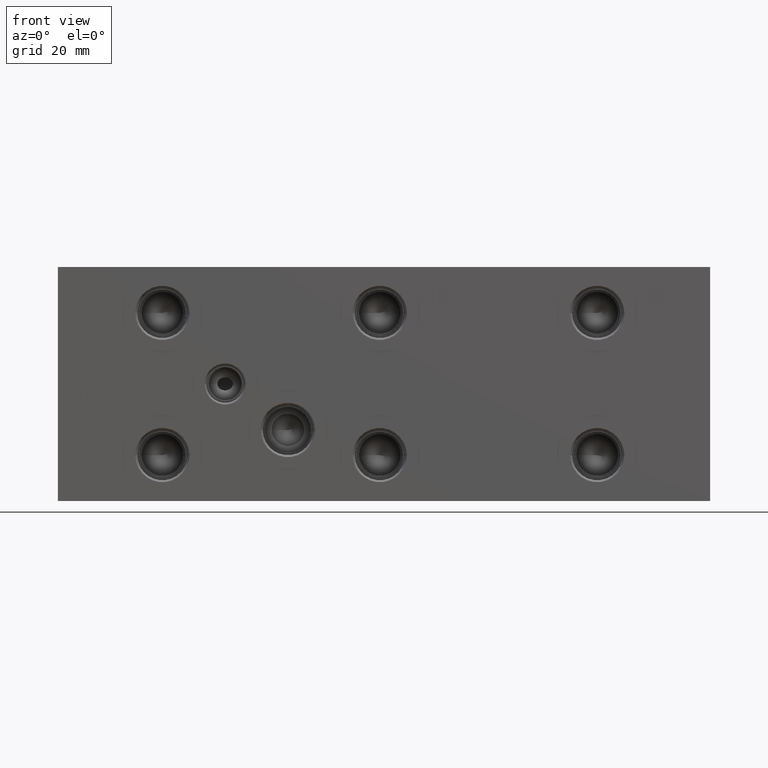
[diagram: clean part render]
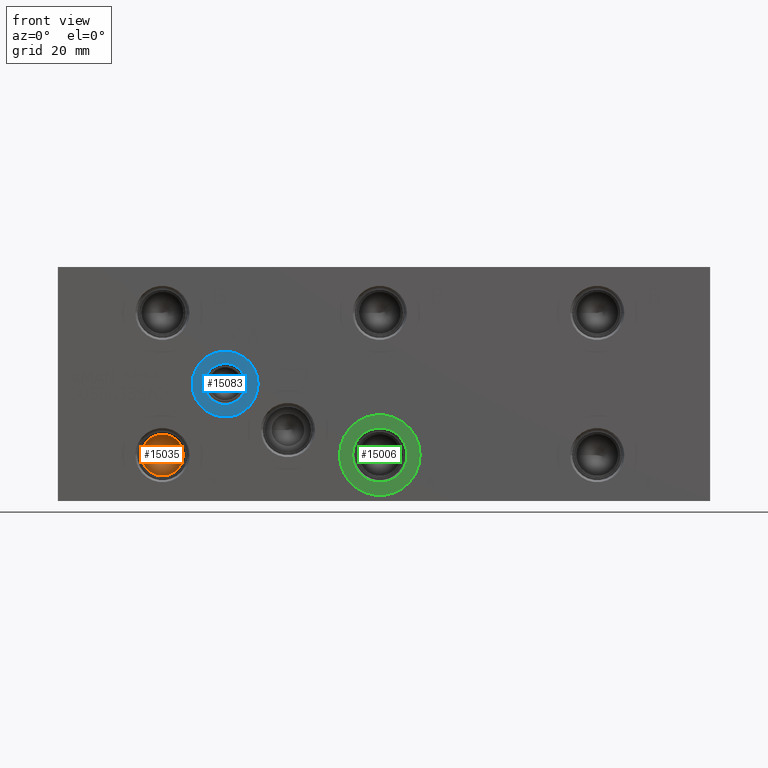
[diagram: same view with three faces highlighted in distinct colors, each labeled with its STEP entity id]
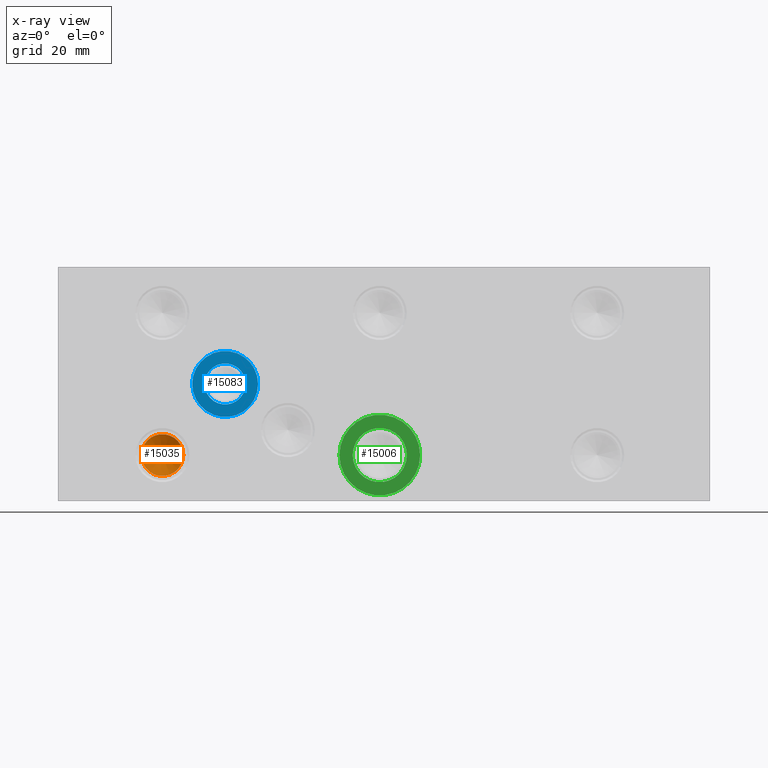
[diagram: x-ray of the same camera — body ghosted, the three highlighted faces saturated]
A machine part, front view with three faces highlighted in distinct colors.
The next image is the same camera in x-ray (body ghosted, the three faces saturated) — at least one of them is partly hidden behind the body in this view.
Their STEP definitions:

[orange] entity #15035 — the highlighted conical surface has half-angle 60 deg.
#49=CONICAL_SURFACE('',#15798,3.96875,1.0471975511966);
#372=CIRCLE('',#15799,7.9375);
#373=CIRCLE('',#15800,7.9375);
#2003=FACE_OUTER_BOUND('',#2864,.T.);
#2864=EDGE_LOOP('',(#12786,#12787,#12788,#12789));
#4237=LINE('',#25855,#5536);
#5536=VECTOR('',#18575,3.96875);
#6866=VERTEX_POINT('',#25851);
#6867=VERTEX_POINT('',#25852);
#6868=VERTEX_POINT('',#25854);
#8905=EDGE_CURVE('',#6866,#6867,#372,.T.);
#8906=EDGE_CURVE('',#6867,#6868,#4237,.T.);
#8907=EDGE_CURVE('',#6867,#6866,#373,.T.);
#12786=ORIENTED_EDGE('',*,*,#8905,.T.);
#12787=ORIENTED_EDGE('',*,*,#8906,.T.);
#12788=ORIENTED_EDGE('',*,*,#8906,.F.);
#12789=ORIENTED_EDGE('',*,*,#8907,.T.);
#15035=ADVANCED_FACE('',(#2003),#49,.F.);
#15798=AXIS2_PLACEMENT_3D('',#25850,#18571,#18572);
#15799=AXIS2_PLACEMENT_3D('',#25853,#18573,#18574);
#15800=AXIS2_PLACEMENT_3D('',#25856,#18576,#18577);
#18571=DIRECTION('center_axis',(0.,-1.,0.));
#18572=DIRECTION('ref_axis',(1.,0.,0.));
#18573=DIRECTION('center_axis',(0.,-1.,0.));
#18574=DIRECTION('ref_axis',(1.,0.,0.));
#18575=DIRECTION('',(0.866025403784439,0.5,1.06057523872491E-16));
#18576=DIRECTION('center_axis',(0.,-1.,0.));
#18577=DIRECTION('ref_axis',(1.,0.,0.));
#25850=CARTESIAN_POINT('Origin',(39.6748,25.5239588808463,17.4498));
#25851=CARTESIAN_POINT('',(47.6123,23.2326,17.4498));
#25852=CARTESIAN_POINT('',(31.7373,23.2326,17.4498));
#25853=CARTESIAN_POINT('Origin',(39.6748,23.2326,17.4498));
#25854=CARTESIAN_POINT('',(39.6748,27.8153177616927,17.4498));
#25855=CARTESIAN_POINT('',(35.70605,25.5239588808463,17.4498));
#25856=CARTESIAN_POINT('Origin',(39.6748,23.2326,17.4498));

[blue] entity #15083 — the highlighted planar face has unit normal (0, 1, 0).
#438=CIRCLE('',#15912,12.5095);
#439=CIRCLE('',#15913,12.5095);
#440=CIRCLE('',#15915,7.7978);
#441=CIRCLE('',#15916,7.7978);
#666=FACE_BOUND('',#2923,.T.);
#2051=FACE_OUTER_BOUND('',#2922,.T.);
#2922=EDGE_LOOP('',(#13013,#13014));
#2923=EDGE_LOOP('',(#13015,#13016));
#6934=VERTEX_POINT('',#26069);
#6935=VERTEX_POINT('',#26071);
#6936=VERTEX_POINT('',#26075);
#6937=VERTEX_POINT('',#26076);
#9009=EDGE_CURVE('',#6934,#6935,#438,.T.);
#9010=EDGE_CURVE('',#6935,#6934,#439,.T.);
#9011=EDGE_CURVE('',#6936,#6937,#440,.T.);
#9012=EDGE_CURVE('',#6937,#6936,#441,.T.);
#13013=ORIENTED_EDGE('',*,*,#9010,.F.);
#13014=ORIENTED_EDGE('',*,*,#9009,.F.);
#13015=ORIENTED_EDGE('',*,*,#9011,.T.);
#13016=ORIENTED_EDGE('',*,*,#9012,.T.);
#13819=PLANE('',#15914);
#15083=ADVANCED_FACE('',(#2051,#666),#13819,.F.);
#15912=AXIS2_PLACEMENT_3D('',#26072,#18837,#18838);
#15913=AXIS2_PLACEMENT_3D('',#26073,#18839,#18840);
#15914=AXIS2_PLACEMENT_3D('',#26074,#18841,#18842);
#15915=AXIS2_PLACEMENT_3D('',#26077,#18843,#18844);
#15916=AXIS2_PLACEMENT_3D('',#26078,#18845,#18846);
#18837=DIRECTION('center_axis',(0.,1.,0.));
#18838=DIRECTION('ref_axis',(1.,0.,0.));
#18839=DIRECTION('center_axis',(0.,1.,0.));
#18840=DIRECTION('ref_axis',(1.,0.,0.));
#18841=DIRECTION('center_axis',(0.,1.,0.));
#18842=DIRECTION('ref_axis',(0.,0.,1.));
#18843=DIRECTION('center_axis',(0.,1.,0.));
#18844=DIRECTION('ref_axis',(1.,0.,0.));
#18845=DIRECTION('center_axis',(0.,1.,0.));
#18846=DIRECTION('ref_axis',(1.,0.,0.));
#26069=CARTESIAN_POINT('',(50.9905,0.7874,44.45));
#26071=CARTESIAN_POINT('',(76.0095,0.7874,44.45));
#26072=CARTESIAN_POINT('Origin',(63.5,0.7874,44.45));
#26073=CARTESIAN_POINT('Origin',(63.5,0.7874,44.45));
#26074=CARTESIAN_POINT('Origin',(71.2978,0.7874,44.45));
#26075=CARTESIAN_POINT('',(71.2978,0.7874,44.45));
#26076=CARTESIAN_POINT('',(55.7022,0.787400000000001,44.45));
#26077=CARTESIAN_POINT('Origin',(63.5,0.7874,44.45));
#26078=CARTESIAN_POINT('Origin',(63.5,0.7874,44.45));

[green] entity #15006 — the highlighted planar face has unit normal (0, 1, 0).
#321=CIRCLE('',#15718,15.3162);
#322=CIRCLE('',#15719,15.3162);
#323=CIRCLE('',#15721,10.2997);
#324=CIRCLE('',#15722,10.2997);
#652=FACE_BOUND('',#2832,.T.);
#1974=FACE_OUTER_BOUND('',#2831,.T.);
#2831=EDGE_LOOP('',(#12639,#12640));
#2832=EDGE_LOOP('',(#12641,#12642));
#6810=VERTEX_POINT('',#25688);
#6811=VERTEX_POINT('',#25690);
#6812=VERTEX_POINT('',#25694);
#6813=VERTEX_POINT('',#25695);
#8829=EDGE_CURVE('',#6810,#6811,#321,.T.);
#8830=EDGE_CURVE('',#6811,#6810,#322,.T.);
#8831=EDGE_CURVE('',#6812,#6813,#323,.T.);
#8832=EDGE_CURVE('',#6813,#6812,#324,.T.);
#12639=ORIENTED_EDGE('',*,*,#8830,.F.);
#12640=ORIENTED_EDGE('',*,*,#8829,.F.);
#12641=ORIENTED_EDGE('',*,*,#8831,.T.);
#12642=ORIENTED_EDGE('',*,*,#8832,.T.);
#13805=PLANE('',#15720);
#15006=ADVANCED_FACE('',(#1974,#652),#13805,.F.);
#15718=AXIS2_PLACEMENT_3D('',#25691,#18386,#18387);
#15719=AXIS2_PLACEMENT_3D('',#25692,#18388,#18389);
#15720=AXIS2_PLACEMENT_3D('',#25693,#18390,#18391);
#15721=AXIS2_PLACEMENT_3D('',#25696,#18392,#18393);
#15722=AXIS2_PLACEMENT_3D('',#25697,#18394,#18395);
#18386=DIRECTION('center_axis',(0.,1.,0.));
#18387=DIRECTION('ref_axis',(1.,0.,0.));
#18388=DIRECTION('center_axis',(0.,1.,0.));
#18389=DIRECTION('ref_axis',(1.,0.,0.));
#18390=DIRECTION('center_axis',(0.,1.,0.));
#18391=DIRECTION('ref_axis',(0.,0.,1.));
#18392=DIRECTION('center_axis',(0.,1.,0.));
#18393=DIRECTION('ref_axis',(1.,0.,0.));
#18394=DIRECTION('center_axis',(0.,1.,0.));
#18395=DIRECTION('ref_axis',(1.,0.,0.));
#25688=CARTESIAN_POINT('',(106.9086,0.7874,17.4498));
#25690=CARTESIAN_POINT('',(137.541,0.7874,17.4498));
#25691=CARTESIAN_POINT('Origin',(122.2248,0.7874,17.4498));
#25692=CARTESIAN_POINT('Origin',(122.2248,0.7874,17.4498));
#25693=CARTESIAN_POINT('Origin',(132.5245,0.7874,17.4498));
#25694=CARTESIAN_POINT('',(132.5245,0.7874,17.4498));
#25695=CARTESIAN_POINT('',(111.9251,0.787399999999997,17.4498));
#25696=CARTESIAN_POINT('Origin',(122.2248,0.7874,17.4498));
#25697=CARTESIAN_POINT('Origin',(122.2248,0.7874,17.4498));